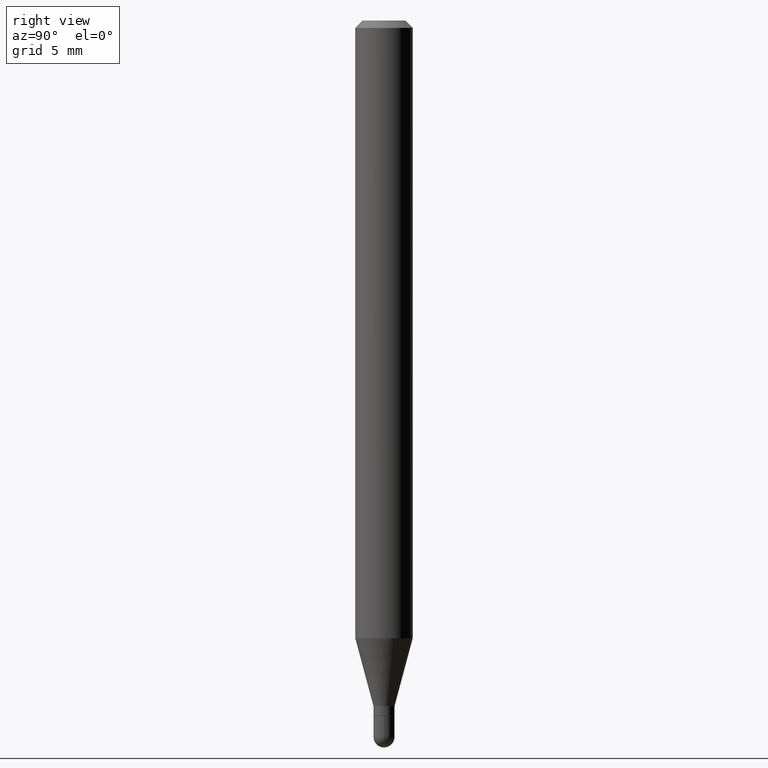
[diagram: clean part render]
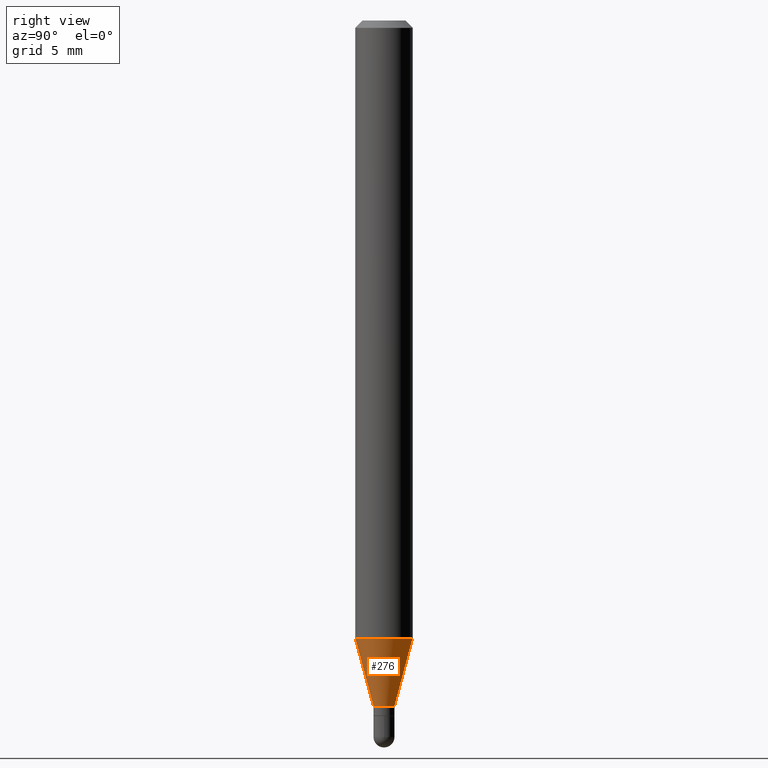
[diagram: same view with one face highlighted and labeled with its STEP entity id]
A machine part, right view. The second image highlights one B-rep face of the part: STEP entity #276.
In plain terms, the highlighted conical surface has half-angle 15 deg.
Its self-contained STEP definition (entity closure, byte-faithful):
#26 = DIRECTION ( 'NONE',  ( -6.982962677686265133E-15, -1.000000000000000000, 0.000000000000000000 ) ) ;
#28 = DIRECTION ( 'NONE',  ( -2.445429181695314527E-29, 3.491538083367856926E-15, 1.000000000000000000 ) ) ;
#31 = VERTEX_POINT ( 'NONE', #189 ) ;
#48 = CIRCLE ( 'NONE', #280, 0.05904999999999999832 ) ;
#72 = AXIS2_PLACEMENT_3D ( 'NONE', #201, #291, #123 ) ;
#87 = CARTESIAN_POINT ( 'NONE',  ( 3.109415291670556053E-29, -4.439565042054361610E-15, -1.271521299796924742 ) ) ;
#97 = ORIENTED_EDGE ( 'NONE', *, *, #239, .T. ) ;
#113 = VERTEX_POINT ( 'NONE', #481 ) ;
#123 = DIRECTION ( 'NONE',  ( -6.982962677686265133E-15, -1.000000000000000000, 0.000000000000000000 ) ) ;
#174 = CIRCLE ( 'NONE', #72, 0.02165000000000018993 ) ;
#178 = LINE ( 'NONE', #341, #194 ) ;
#189 = CARTESIAN_POINT ( 'NONE',  ( -4.123439461173429220E-16, -0.05905000000000444615, -1.271521299796924298 ) ) ;
#194 = VECTOR ( 'NONE', #469, 39.37007874015748854 ) ;
#198 = FACE_OUTER_BOUND ( 'NONE', #444, .T. ) ;
#201 = CARTESIAN_POINT ( 'NONE',  ( 3.450745118290257068E-29, -4.926909389440380826E-15, -1.411099999999999577 ) ) ;
#202 = DIRECTION ( 'NONE',  ( -1.807323732225328562E-15, -0.2588190451025179639, 0.9659258262890690894 ) ) ;
#214 = VECTOR ( 'NONE', #202, 39.37007874015748854 ) ;
#217 = CARTESIAN_POINT ( 'NONE',  ( 3.450745118290257068E-29, -4.926909389440380826E-15, -1.411099999999999577 ) ) ;
#230 = ORIENTED_EDGE ( 'NONE', *, *, #336, .T. ) ;
#239 = EDGE_CURVE ( 'NONE', #478, #113, #174, .T. ) ;
#240 = VERTEX_POINT ( 'NONE', #454 ) ;
#243 = DIRECTION ( 'NONE',  ( -2.445429181695314527E-29, 3.491538083367856926E-15, 1.000000000000000000 ) ) ;
#254 = ORIENTED_EDGE ( 'NONE', *, *, #424, .F. ) ;
#276 = ADVANCED_FACE ( 'NONE', ( #198 ), #433, .T. ) ;
#280 = AXIS2_PLACEMENT_3D ( 'NONE', #87, #243, #364 ) ;
#291 = DIRECTION ( 'NONE',  ( -2.445429181695314527E-29, 3.491538083367856926E-15, 1.000000000000000000 ) ) ;
#297 = ORIENTED_EDGE ( 'NONE', *, *, #377, .F. ) ;
#307 = AXIS2_PLACEMENT_3D ( 'NONE', #217, #28, #26 ) ;
#336 = EDGE_CURVE ( 'NONE', #113, #240, #178, .T. ) ;
#341 = CARTESIAN_POINT ( 'NONE',  ( 1.538325022920975278E-16, 0.02164999999999526331, -1.411099999999999577 ) ) ;
#364 = DIRECTION ( 'NONE',  ( -6.982962677686265922E-15, -1.000000000000000000, 4.626330217890369336E-15 ) ) ;
#371 = CARTESIAN_POINT ( 'NONE',  ( -1.511811419718744510E-16, -0.02165000000000511654, -1.411099999999999577 ) ) ;
#377 = EDGE_CURVE ( 'NONE', #478, #31, #484, .T. ) ;
#424 = EDGE_CURVE ( 'NONE', #31, #240, #48, .T. ) ;
#433 = CONICAL_SURFACE ( 'NONE', #307, 0.02165000000000018993, 0.2617993877991500740 ) ;
#444 = EDGE_LOOP ( 'NONE', ( #97, #230, #254, #297 ) ) ;
#454 = CARTESIAN_POINT ( 'NONE',  ( 4.195754854663700120E-16, 0.05904999999999554355, -1.271521299796924964 ) ) ;
#456 = CARTESIAN_POINT ( 'NONE',  ( -1.511811419718744510E-16, -0.02165000000000511654, -1.411099999999999577 ) ) ;
#469 = DIRECTION ( 'NONE',  ( 1.839019923739598738E-15, 0.2588190451025247363, 0.9659258262890673130 ) ) ;
#478 = VERTEX_POINT ( 'NONE', #371 ) ;
#481 = CARTESIAN_POINT ( 'NONE',  ( 2.867039938792339301E-16, 0.02164999999999526331, -1.411099999999999577 ) ) ;
#484 = LINE ( 'NONE', #456, #214 ) ;